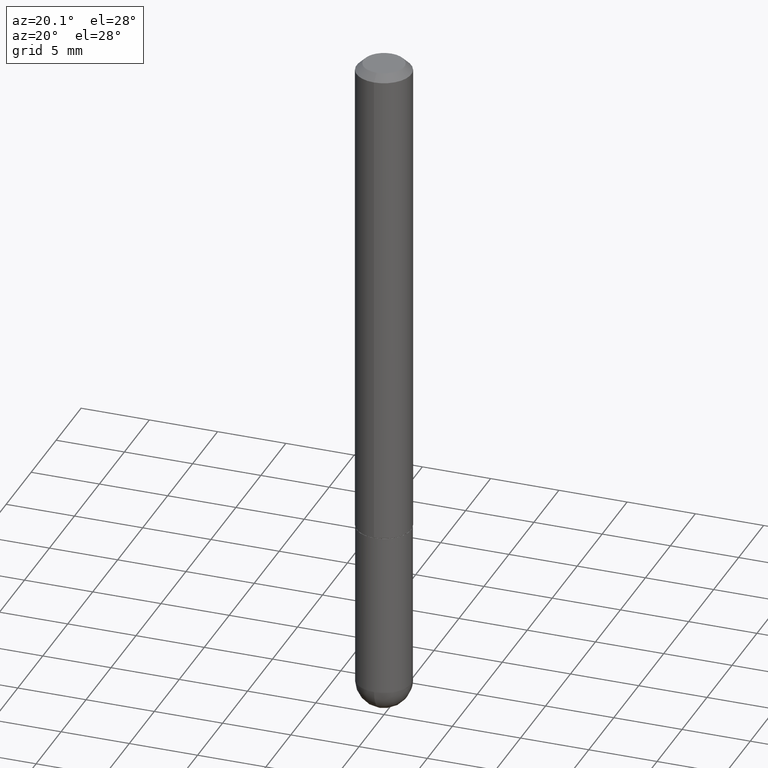
[diagram: clean part render]
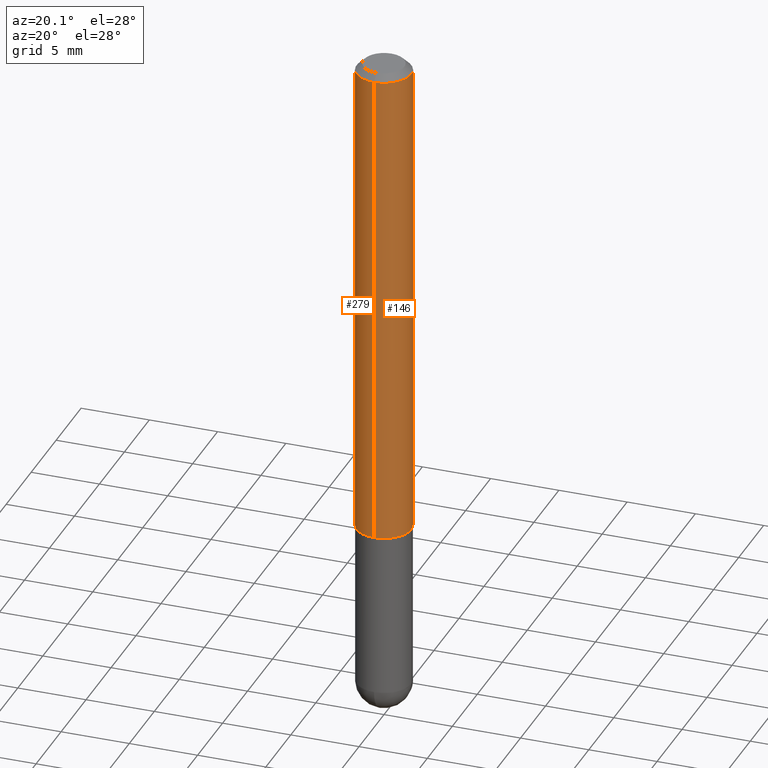
[diagram: same view with one multi-face feature highlighted, each face labeled with its STEP entity id]
A machine part, auxiliary view. The highlighted faces form ONE feature: a constant-radius fillet chain: 2 tangent blend faces with common blend radius 2.0003 mm. The faces share edges in the B-rep.
Their STEP definitions:
[1] entity #146 (Cylinder):
#11 = DIRECTION ( 'NONE',  ( -6.982962677686265922E-15, -1.000000000000000000, 3.469013325287954477E-15 ) ) ;
#17 = EDGE_CURVE ( 'NONE', #59, #384, #411, .T. ) ;
#42 = VECTOR ( 'NONE', #275, 39.37007874015748143 ) ;
#48 = LINE ( 'NONE', #189, #156 ) ;
#59 = VERTEX_POINT ( 'NONE', #68 ) ;
#68 = CARTESIAN_POINT ( 'NONE',  ( 5.595524044110973399E-16, 0.07874999999999522660, -1.416300000000000114 ) ) ;
#76 = CARTESIAN_POINT ( 'NONE',  ( -5.402642173245073966E-16, -0.07875000000000004219, -0.01999999999999974368 ) ) ;
#102 = CARTESIAN_POINT ( 'NONE',  ( 5.595524044110793934E-16, 0.07875000000000008382, -2.750006458460061015E-16 ) ) ;
#127 = ORIENTED_EDGE ( 'NONE', *, *, #17, .T. ) ;
#146 = ADVANCED_FACE ( 'NONE', ( #375 ), #153, .T. ) ;
#153 = CYLINDRICAL_SURFACE ( 'NONE', #290, 0.07875000000000008382 ) ;
#156 = VECTOR ( 'NONE', #317, 39.37007874015748143 ) ;
#159 = CARTESIAN_POINT ( 'NONE',  ( 3.462933611428052952E-29, -4.945821139196164307E-15, -1.416299999999999892 ) ) ;
#165 = CARTESIAN_POINT ( 'NONE',  ( -5.499083108677601149E-16, -0.07875000000000513534, -1.416299999999999670 ) ) ;
#183 = DIRECTION ( 'NONE',  ( -2.445056563883395622E-29, 3.492071693282613575E-15, 1.000000000000000000 ) ) ;
#189 = CARTESIAN_POINT ( 'NONE',  ( -5.499083108677939373E-16, -0.07875000000000008382, 2.750006458460061015E-16 ) ) ;
#194 = DIRECTION ( 'NONE',  ( -2.445056563883395622E-29, 3.492071693282613575E-15, 1.000000000000000000 ) ) ;
#196 = AXIS2_PLACEMENT_3D ( 'NONE', #262, #183, #11 ) ;
#214 = ORIENTED_EDGE ( 'NONE', *, *, #337, .T. ) ;
#231 = VERTEX_POINT ( 'NONE', #76 ) ;
#254 = CIRCLE ( 'NONE', #302, 0.07875000000000018097 ) ;
#258 = CARTESIAN_POINT ( 'NONE',  ( 0.000000000000000000, 0.000000000000000000, 0.000000000000000000 ) ) ;
#262 = CARTESIAN_POINT ( 'NONE',  ( 4.890113127766794678E-31, -6.984143386565232622E-17, -0.02000000000000001776 ) ) ;
#272 = ORIENTED_EDGE ( 'NONE', *, *, #329, .F. ) ;
#275 = DIRECTION ( 'NONE',  ( -2.445056563883395342E-29, 3.492071693282613969E-15, 1.000000000000000000 ) ) ;
#283 = DIRECTION ( 'NONE',  ( -2.445056563883395622E-29, 3.492071693282613575E-15, 1.000000000000000000 ) ) ;
#285 = EDGE_CURVE ( 'NONE', #231, #384, #350, .T. ) ;
#290 = AXIS2_PLACEMENT_3D ( 'NONE', #258, #283, #397 ) ;
#291 = DIRECTION ( 'NONE',  ( -6.982962677686265922E-15, -1.000000000000000000, 3.469013325287945405E-15 ) ) ;
#299 = VERTEX_POINT ( 'NONE', #165 ) ;
#302 = AXIS2_PLACEMENT_3D ( 'NONE', #159, #194, #291 ) ;
#317 = DIRECTION ( 'NONE',  ( -2.445056563883395342E-29, 3.492071693282613969E-15, 1.000000000000000000 ) ) ;
#329 = EDGE_CURVE ( 'NONE', #299, #231, #48, .T. ) ;
#337 = EDGE_CURVE ( 'NONE', #299, #59, #254, .T. ) ;
#350 = CIRCLE ( 'NONE', #196, 0.07874999999999997280 ) ;
#364 = EDGE_LOOP ( 'NONE', ( #214, #127, #405, #272 ) ) ;
#375 = FACE_OUTER_BOUND ( 'NONE', #364, .T. ) ;
#384 = VERTEX_POINT ( 'NONE', #407 ) ;
#397 = DIRECTION ( 'NONE',  ( -6.982962677686265133E-15, -1.000000000000000000, 3.492071693282613575E-15 ) ) ;
#405 = ORIENTED_EDGE ( 'NONE', *, *, #285, .F. ) ;
#407 = CARTESIAN_POINT ( 'NONE',  ( 5.499083108677937401E-16, 0.07874999999999991729, -0.02000000000000029185 ) ) ;
#411 = LINE ( 'NONE', #102, #42 ) ;
[2] entity #279 (Cylinder):
#14 = AXIS2_PLACEMENT_3D ( 'NONE', #50, #193, #20 ) ;
#16 = CARTESIAN_POINT ( 'NONE',  ( 3.462933611428052952E-29, -4.945821139196164307E-15, -1.416299999999999892 ) ) ;
#17 = EDGE_CURVE ( 'NONE', #59, #384, #411, .T. ) ;
#20 = DIRECTION ( 'NONE',  ( -6.982962677686265133E-15, -1.000000000000000000, 3.492071693282613575E-15 ) ) ;
#22 = AXIS2_PLACEMENT_3D ( 'NONE', #213, #336, #39 ) ;
#39 = DIRECTION ( 'NONE',  ( -6.982962677686265922E-15, -1.000000000000000000, 3.469013325287954477E-15 ) ) ;
#42 = VECTOR ( 'NONE', #275, 39.37007874015748143 ) ;
#48 = LINE ( 'NONE', #189, #156 ) ;
#50 = CARTESIAN_POINT ( 'NONE',  ( 0.000000000000000000, 0.000000000000000000, 0.000000000000000000 ) ) ;
#59 = VERTEX_POINT ( 'NONE', #68 ) ;
#68 = CARTESIAN_POINT ( 'NONE',  ( 5.595524044110973399E-16, 0.07874999999999522660, -1.416300000000000114 ) ) ;
#69 = EDGE_CURVE ( 'NONE', #384, #231, #216, .T. ) ;
#70 = ORIENTED_EDGE ( 'NONE', *, *, #69, .F. ) ;
#76 = CARTESIAN_POINT ( 'NONE',  ( -5.402642173245073966E-16, -0.07875000000000004219, -0.01999999999999974368 ) ) ;
#102 = CARTESIAN_POINT ( 'NONE',  ( 5.595524044110793934E-16, 0.07875000000000008382, -2.750006458460061015E-16 ) ) ;
#112 = ORIENTED_EDGE ( 'NONE', *, *, #330, .T. ) ;
#140 = ORIENTED_EDGE ( 'NONE', *, *, #329, .T. ) ;
#148 = AXIS2_PLACEMENT_3D ( 'NONE', #16, #224, #261 ) ;
#156 = VECTOR ( 'NONE', #317, 39.37007874015748143 ) ;
#165 = CARTESIAN_POINT ( 'NONE',  ( -5.499083108677601149E-16, -0.07875000000000513534, -1.416299999999999670 ) ) ;
#189 = CARTESIAN_POINT ( 'NONE',  ( -5.499083108677939373E-16, -0.07875000000000008382, 2.750006458460061015E-16 ) ) ;
#193 = DIRECTION ( 'NONE',  ( -2.445056563883395622E-29, 3.492071693282613575E-15, 1.000000000000000000 ) ) ;
#213 = CARTESIAN_POINT ( 'NONE',  ( 4.890113127766794678E-31, -6.984143386565232622E-17, -0.02000000000000001776 ) ) ;
#216 = CIRCLE ( 'NONE', #22, 0.07874999999999997280 ) ;
#224 = DIRECTION ( 'NONE',  ( -2.445056563883395622E-29, 3.492071693282613575E-15, 1.000000000000000000 ) ) ;
#231 = VERTEX_POINT ( 'NONE', #76 ) ;
#250 = ORIENTED_EDGE ( 'NONE', *, *, #17, .F. ) ;
#261 = DIRECTION ( 'NONE',  ( -6.982962677686265922E-15, -1.000000000000000000, 3.469013325287945405E-15 ) ) ;
#270 = CIRCLE ( 'NONE', #148, 0.07875000000000018097 ) ;
#275 = DIRECTION ( 'NONE',  ( -2.445056563883395342E-29, 3.492071693282613969E-15, 1.000000000000000000 ) ) ;
#279 = ADVANCED_FACE ( 'NONE', ( #314 ), #398, .T. ) ;
#299 = VERTEX_POINT ( 'NONE', #165 ) ;
#314 = FACE_OUTER_BOUND ( 'NONE', #380, .T. ) ;
#317 = DIRECTION ( 'NONE',  ( -2.445056563883395342E-29, 3.492071693282613969E-15, 1.000000000000000000 ) ) ;
#329 = EDGE_CURVE ( 'NONE', #299, #231, #48, .T. ) ;
#330 = EDGE_CURVE ( 'NONE', #59, #299, #270, .T. ) ;
#336 = DIRECTION ( 'NONE',  ( -2.445056563883395622E-29, 3.492071693282613575E-15, 1.000000000000000000 ) ) ;
#380 = EDGE_LOOP ( 'NONE', ( #250, #112, #140, #70 ) ) ;
#384 = VERTEX_POINT ( 'NONE', #407 ) ;
#398 = CYLINDRICAL_SURFACE ( 'NONE', #14, 0.07875000000000008382 ) ;
#407 = CARTESIAN_POINT ( 'NONE',  ( 5.499083108677937401E-16, 0.07874999999999991729, -0.02000000000000029185 ) ) ;
#411 = LINE ( 'NONE', #102, #42 ) ;